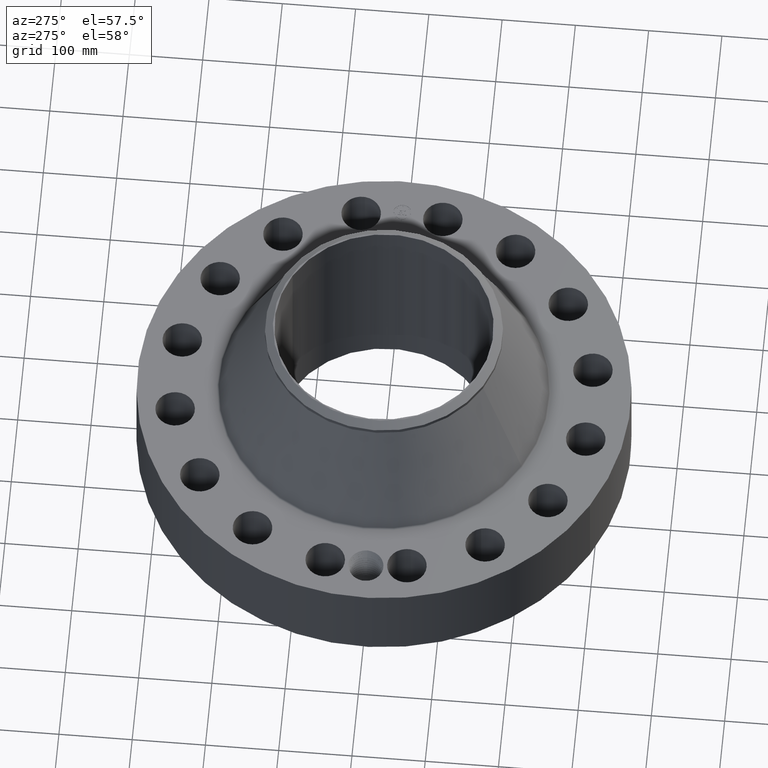
[diagram: clean part render]
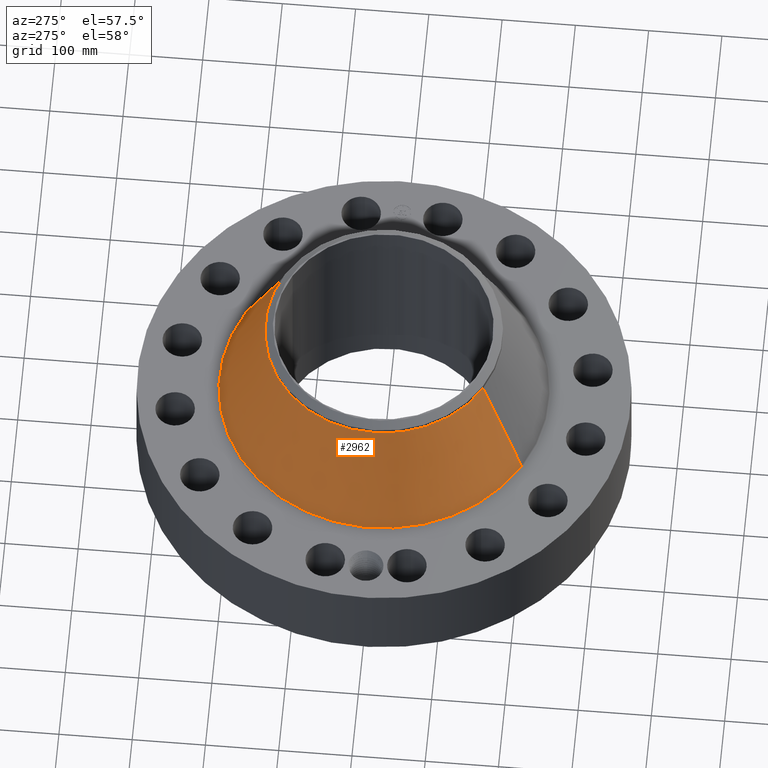
[diagram: same view with one face highlighted and labeled with its STEP entity id]
A machine part, auxiliary view. The second image highlights one B-rep face of the part: STEP entity #2962.
In plain terms, the highlighted conical surface has half-angle 23.754 deg.
Its self-contained STEP definition (entity closure, byte-faithful):
#2294=AXIS2_PLACEMENT_3D('Circle Axis2P3D',#2292,#2293,$) ;
#2923=AXIS2_PLACEMENT_3D('Cone Axis2P3D',#2920,#2921,#2922) ;
#2953=AXIS2_PLACEMENT_3D('Circle Axis2P3D',#2951,#2952,$) ;
#2270=CARTESIAN_POINT('Vertex',(4.23978129349,7.76086760048,5.20166222396)) ;
#2277=CARTESIAN_POINT('Vertex',(-4.23978129349,-7.76086760048,5.20166222396)) ;
#2292=CARTESIAN_POINT('Axis2P3D Location',(0.,0.,5.20166222396)) ;
#2920=CARTESIAN_POINT('Axis2P3D Location',(0.,0.,10.8105354815)) ;
#2925=CARTESIAN_POINT('Line Origine',(3.64805955105,6.67772821628,8.00609885272)) ;
#2929=CARTESIAN_POINT('Vertex',(3.05633780861,5.59458883207,10.8105354815)) ;
#2936=CARTESIAN_POINT('Vertex',(-3.05633780861,-5.59458883207,10.8105354815)) ;
#2939=CARTESIAN_POINT('Line Origine',(-3.64805955105,-6.67772821628,8.00609885272)) ;
#2951=CARTESIAN_POINT('Axis2P3D Location',(0.,0.,10.8105354815)) ;
#2293=DIRECTION('Axis2P3D Direction',(0.,0.,-0.0393700787402)) ;
#2921=DIRECTION('Axis2P3D Direction',(0.,0.,-0.0393700787402)) ;
#2922=DIRECTION('Axis2P3D XDirection',(-0.0188750212049,-0.0345504945626,0.)) ;
#2926=DIRECTION('Vector Direction',(0.00760313790121,0.0139174505747,-0.0360347049879)) ;
#2940=DIRECTION('Vector Direction',(-0.00760313790121,-0.0139174505747,-0.0360347049879)) ;
#2952=DIRECTION('Axis2P3D Direction',(0.,0.,-0.0393700787402)) ;
#2927=VECTOR('Line Direction',#2926,0.0393700787402) ;
#2941=VECTOR('Line Direction',#2940,0.0393700787402) ;
#2957=ORIENTED_EDGE('',*,*,#2296,.F.) ;
#2958=ORIENTED_EDGE('',*,*,#2943,.T.) ;
#2959=ORIENTED_EDGE('',*,*,#2955,.T.) ;
#2960=ORIENTED_EDGE('',*,*,#2931,.F.) ;
#2962=ADVANCED_FACE('PartBody',(#2961),#2924,.T.) ;
#2295=CIRCLE('generated circle',#2294,8.84346150152) ;
#2954=CIRCLE('generated circle',#2953,6.37500000003) ;
#2924=CONICAL_SURFACE('Cone',#2923,6.37500000003,0.414590111103) ;
#2296=EDGE_CURVE('',#2278,#2271,#2295,.T.) ;
#2931=EDGE_CURVE('',#2271,#2930,#2928,.F.) ;
#2943=EDGE_CURVE('',#2278,#2937,#2942,.F.) ;
#2955=EDGE_CURVE('',#2937,#2930,#2954,.T.) ;
#2956=EDGE_LOOP('',(#2957,#2958,#2959,#2960)) ;
#2961=FACE_OUTER_BOUND('',#2956,.T.) ;
#2928=LINE('Line',#2925,#2927) ;
#2942=LINE('Line',#2939,#2941) ;
#2271=VERTEX_POINT('',#2270) ;
#2278=VERTEX_POINT('',#2277) ;
#2930=VERTEX_POINT('',#2929) ;
#2937=VERTEX_POINT('',#2936) ;